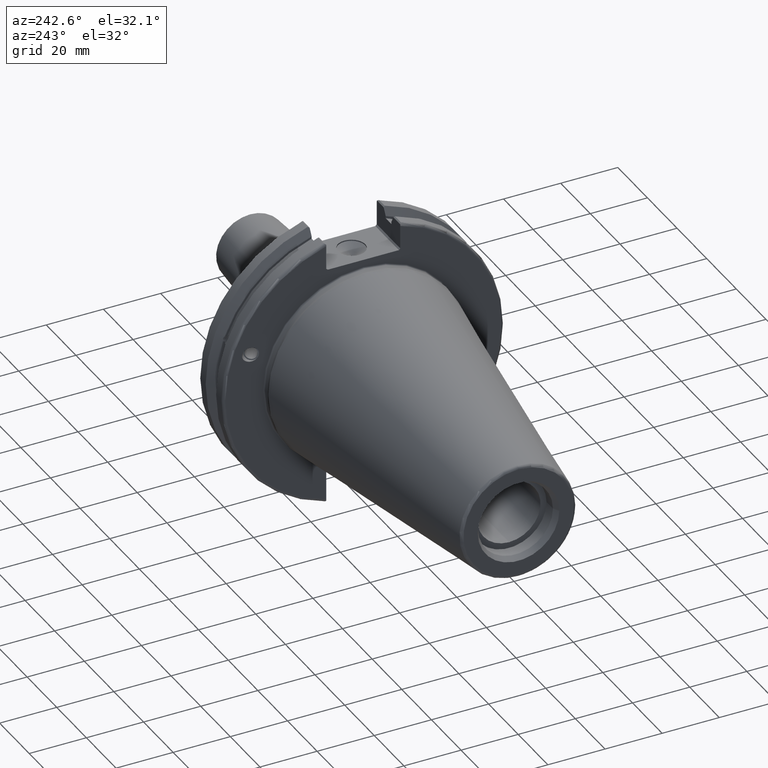
[diagram: clean part render]
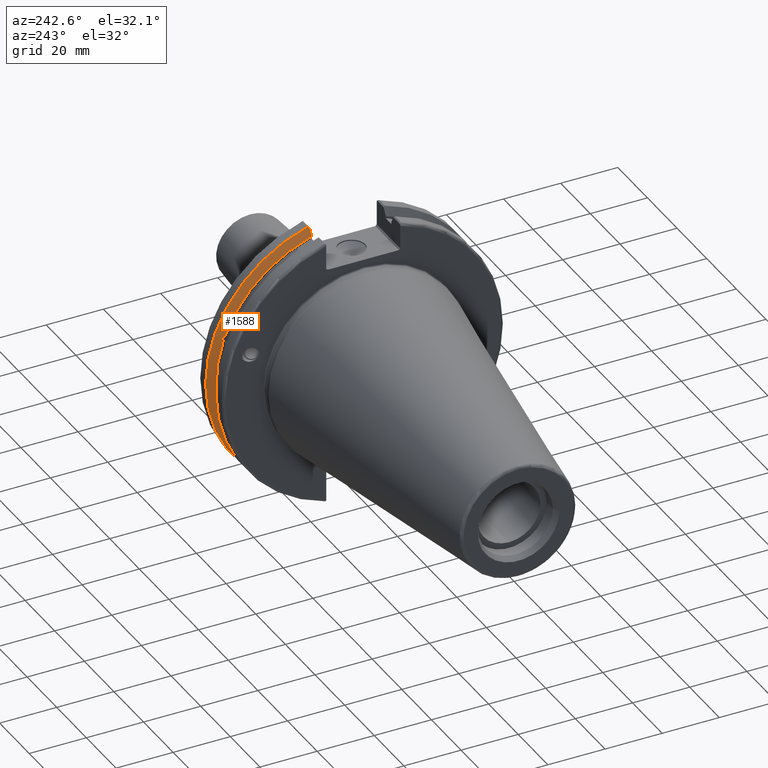
[diagram: same view with one face highlighted and labeled with its STEP entity id]
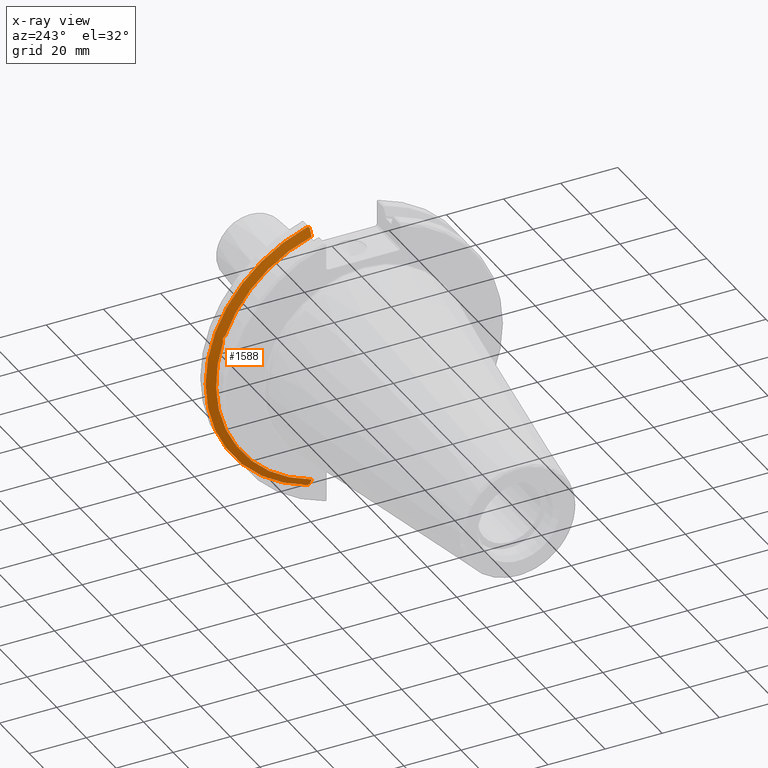
[diagram: x-ray of the same camera — body ghosted, the highlighted face saturated]
A machine part, auxiliary view. The second image highlights one B-rep face of the part: STEP entity #1588.
The next image is the same camera in x-ray: the body ghosted, the highlighted face saturated — about 0% of this face is hidden behind the body in this view.
In plain terms, the highlighted conical surface has half-angle 60 deg.
Its self-contained STEP definition (entity closure, byte-faithful):
#23=(
BOUNDED_CURVE()
B_SPLINE_CURVE(2,(#2978,#2979,#2980),.UNSPECIFIED.,.F.,.F.)
B_SPLINE_CURVE_WITH_KNOTS((3,3),(0.325260944932521,0.390084992222202),
 .UNSPECIFIED.)
CURVE()
GEOMETRIC_REPRESENTATION_ITEM()
RATIONAL_B_SPLINE_CURVE((1.00019140645994,1.00011477674864,1.))
REPRESENTATION_ITEM('')
);
#24=(
BOUNDED_CURVE()
B_SPLINE_CURVE(2,(#2992,#2993,#2994),.UNSPECIFIED.,.F.,.F.)
B_SPLINE_CURVE_WITH_KNOTS((3,3),(0.0558332664532001,0.331657177124504),
 .UNSPECIFIED.)
CURVE()
GEOMETRIC_REPRESENTATION_ITEM()
RATIONAL_B_SPLINE_CURVE((1.00012873636632,1.00038235574022,1.))
REPRESENTATION_ITEM('')
);
#29=(
BOUNDED_CURVE()
B_SPLINE_CURVE(2,(#3157,#3158,#3159),.UNSPECIFIED.,.F.,.F.)
B_SPLINE_CURVE_WITH_KNOTS((3,3),(0.,0.275823910671402),.UNSPECIFIED.)
CURVE()
GEOMETRIC_REPRESENTATION_ITEM()
RATIONAL_B_SPLINE_CURVE((1.,1.00038235574129,1.00012873636668))
REPRESENTATION_ITEM('')
);
#30=(
BOUNDED_CURVE()
B_SPLINE_CURVE(2,(#3174,#3175,#3176),.UNSPECIFIED.,.F.,.F.)
B_SPLINE_CURVE_WITH_KNOTS((3,3),(0.,0.0648240472897064),.UNSPECIFIED.)
CURVE()
GEOMETRIC_REPRESENTATION_ITEM()
RATIONAL_B_SPLINE_CURVE((1.,1.00011477674844,1.00019140645961))
REPRESENTATION_ITEM('')
);
#50=B_SPLINE_CURVE_WITH_KNOTS('',3,(#2774,#2775,#2776,#2777,#2778,#2779,
#2780,#2781),.UNSPECIFIED.,.F.,.F.,(4,2,2,4),(0.426712868358719,0.441644498666905,
0.480313313223129,0.518982127779353),.UNSPECIFIED.);
#54=B_SPLINE_CURVE_WITH_KNOTS('',3,(#2836,#2837,#2838,#2839,#2840,#2841,
#2842,#2843),.UNSPECIFIED.,.F.,.F.,(4,2,2,4),(0.518982127779353,0.557650942335576,
0.5963197568918,0.611251387199989),.UNSPECIFIED.);
#80=CONICAL_SURFACE('',#1777,47.8172386482472,1.0471975511966);
#229=FACE_OUTER_BOUND('',#337,.T.);
#337=EDGE_LOOP('',(#1422,#1423,#1424,#1425,#1426,#1427,#1428,#1429,#1430));
#397=CIRCLE('',#1710,46.4219772964944);
#421=CIRCLE('',#1770,49.2125);
#424=CIRCLE('',#1778,46.4219772964944);
#699=VERTEX_POINT('',#2771);
#700=VERTEX_POINT('',#2773);
#707=VERTEX_POINT('',#2834);
#716=VERTEX_POINT('',#2876);
#744=VERTEX_POINT('',#2975);
#745=VERTEX_POINT('',#2977);
#770=VERTEX_POINT('',#3154);
#771=VERTEX_POINT('',#3156);
#774=VERTEX_POINT('',#3172);
#881=EDGE_CURVE('',#700,#699,#50,.T.);
#889=EDGE_CURVE('',#699,#707,#54,.T.);
#901=EDGE_CURVE('',#716,#700,#397,.T.);
#938=EDGE_CURVE('',#744,#745,#23,.T.);
#943=EDGE_CURVE('',#744,#716,#24,.T.);
#988=EDGE_CURVE('',#771,#770,#29,.T.);
#996=EDGE_CURVE('',#774,#770,#30,.T.);
#997=EDGE_CURVE('',#745,#774,#421,.T.);
#1003=EDGE_CURVE('',#707,#771,#424,.T.);
#1422=ORIENTED_EDGE('',*,*,#881,.T.);
#1423=ORIENTED_EDGE('',*,*,#889,.T.);
#1424=ORIENTED_EDGE('',*,*,#1003,.T.);
#1425=ORIENTED_EDGE('',*,*,#988,.T.);
#1426=ORIENTED_EDGE('',*,*,#996,.F.);
#1427=ORIENTED_EDGE('',*,*,#997,.F.);
#1428=ORIENTED_EDGE('',*,*,#938,.F.);
#1429=ORIENTED_EDGE('',*,*,#943,.T.);
#1430=ORIENTED_EDGE('',*,*,#901,.T.);
#1588=ADVANCED_FACE('',(#229),#80,.T.);
#1710=AXIS2_PLACEMENT_3D('',#2877,#2013,#2014);
#1770=AXIS2_PLACEMENT_3D('',#3178,#2180,#2181);
#1777=AXIS2_PLACEMENT_3D('',#3191,#2197,#2198);
#1778=AXIS2_PLACEMENT_3D('',#3192,#2199,#2200);
#2013=DIRECTION('center_axis',(1.,0.,0.));
#2014=DIRECTION('ref_axis',(0.,0.,-1.));
#2180=DIRECTION('center_axis',(1.,0.,0.));
#2181=DIRECTION('ref_axis',(0.,0.,-1.));
#2197=DIRECTION('center_axis',(1.,0.,0.));
#2198=DIRECTION('ref_axis',(0.,1.,0.));
#2199=DIRECTION('center_axis',(1.,0.,0.));
#2200=DIRECTION('ref_axis',(0.,0.,-1.));
#2771=CARTESIAN_POINT('',(13.2341,43.923494649906,15.9868446375166));
#2773=CARTESIAN_POINT('',(13.0491,43.9096390749305,15.0646464421033));
#2774=CARTESIAN_POINT('Ctrl Pts',(13.0491,43.9096390749305,15.0646464421033));
#2775=CARTESIAN_POINT('Ctrl Pts',(13.0660815609661,43.9250360001461,15.1104047527575));
#2776=CARTESIAN_POINT('Ctrl Pts',(13.0821132459668,43.9385582852181,15.1564111356409));
#2777=CARTESIAN_POINT('Ctrl Pts',(13.1358132615496,43.9797830409459,15.3217566390709));
#2778=CARTESIAN_POINT('Ctrl Pts',(13.1719838933644,43.9989016655819,15.4570249042868));
#2779=CARTESIAN_POINT('Ctrl Pts',(13.2212913174802,43.9931221605126,15.7289849146254));
#2780=CARTESIAN_POINT('Ctrl Pts',(13.2341,43.9675796948952,15.8657219718732));
#2781=CARTESIAN_POINT('Ctrl Pts',(13.2341,43.923494649906,15.9868446375166));
#2834=CARTESIAN_POINT('',(13.0491,43.3201030900029,16.684383248648));
#2836=CARTESIAN_POINT('Ctrl Pts',(13.2341,43.923494649906,15.9868446375166));
#2837=CARTESIAN_POINT('Ctrl Pts',(13.2341,43.8794096049169,16.10796730316));
#2838=CARTESIAN_POINT('Ctrl Pts',(13.2212913174802,43.8110833825827,16.2291323464527));
#2839=CARTESIAN_POINT('Ctrl Pts',(13.1719838933644,43.6406982153492,16.441180795372));
#2840=CARTESIAN_POINT('Ctrl Pts',(13.1358132615496,43.5391037343221,16.5325130832406));
#2841=CARTESIAN_POINT('Ctrl Pts',(13.0821132459668,43.4012416983557,16.6326763251437));
#2842=CARTESIAN_POINT('Ctrl Pts',(13.0660815609661,43.3613106941341,16.6592273018006));
#2843=CARTESIAN_POINT('Ctrl Pts',(13.0491,43.3201030900029,16.684383248648));
#2876=CARTESIAN_POINT('',(13.0491,12.95,-44.5791147973605));
#2877=CARTESIAN_POINT('Origin',(13.0491,0.,0.));
#2975=CARTESIAN_POINT('',(14.3818103943757,12.95,-46.9780755322918));
#2977=CARTESIAN_POINT('',(14.6602090340487,13.4317035994433,-47.3440544806494));
#2978=CARTESIAN_POINT('Ctrl Pts',(14.3818103943757,12.95,-46.9780755322918));
#2979=CARTESIAN_POINT('Ctrl Pts',(14.5199310333617,13.1896660169965,-47.1601640966264));
#2980=CARTESIAN_POINT('Ctrl Pts',(14.6602090340487,13.4317035994433,-47.3440544806494));
#2992=CARTESIAN_POINT('Ctrl Pts',(14.3818103943757,12.95,-46.9780755322918));
#2993=CARTESIAN_POINT('Ctrl Pts',(13.6979955094851,12.95,-45.7494966802933));
#2994=CARTESIAN_POINT('Ctrl Pts',(13.0491,12.95,-44.5791147973604));
#3154=CARTESIAN_POINT('',(14.3818103943757,12.95,46.9780755322918));
#3156=CARTESIAN_POINT('',(13.0491,12.95,44.5791147973604));
#3157=CARTESIAN_POINT('Ctrl Pts',(13.0491,12.95,44.5791147973604));
#3158=CARTESIAN_POINT('Ctrl Pts',(13.6979955094846,12.95,45.7494966802924));
#3159=CARTESIAN_POINT('Ctrl Pts',(14.3818103943757,12.95,46.9780755322918));
#3172=CARTESIAN_POINT('',(14.6602090340487,13.4317035994433,47.3440544806494));
#3174=CARTESIAN_POINT('Ctrl Pts',(14.6602090340487,13.4317035994433,47.3440544806494));
#3175=CARTESIAN_POINT('Ctrl Pts',(14.5199310333618,13.1896660169966,47.1601640966264));
#3176=CARTESIAN_POINT('Ctrl Pts',(14.3818103943757,12.95,46.9780755322918));
#3178=CARTESIAN_POINT('Origin',(14.6602090340487,0.,0.));
#3191=CARTESIAN_POINT('Origin',(13.8546545170244,0.,0.));
#3192=CARTESIAN_POINT('Origin',(13.0491,0.,0.));